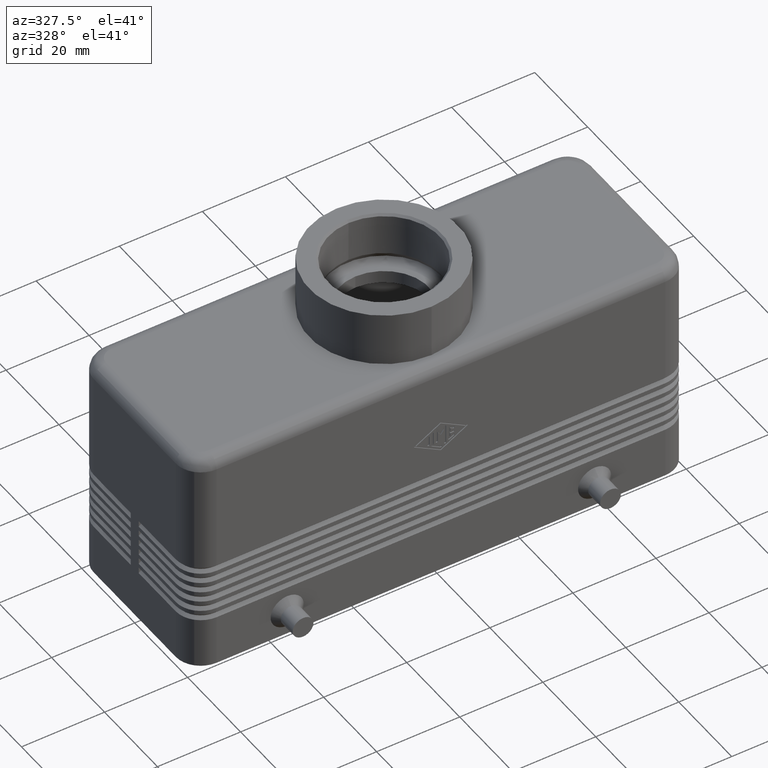
[diagram: clean part render]
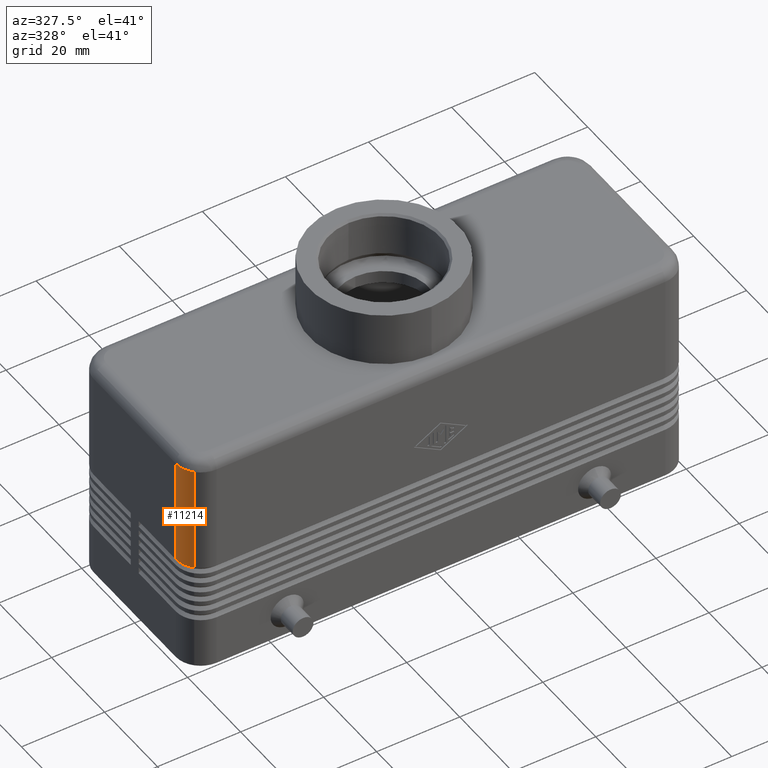
[diagram: same view with one face highlighted and labeled with its STEP entity id]
A machine part, auxiliary view. The second image highlights one B-rep face of the part: STEP entity #11214.
In plain terms, the highlighted cylindrical surface (edge-blend (fillet) strip) has radius 6 mm, axis along (0, 0, 1).
Its self-contained STEP definition (entity closure, byte-faithful):
#1374=CARTESIAN_POINT('',(-58.242640687119277,-19.742640687119277,26.250000000000021));
#1375=VERTEX_POINT('',#1374);
#1376=CARTESIAN_POINT('',(-58.242640687119277,-19.742640687119277,52.000000000000014));
#1377=VERTEX_POINT('',#1376);
#1378=CARTESIAN_POINT('',(-58.242640687119277,-19.742640687119277,26.250000000000021));
#1379=DIRECTION('',(0.0,0.0,1.0));
#1380=VECTOR('',#1379,25.749999999999993);
#1381=LINE('',#1378,#1380);
#1382=EDGE_CURVE('',#1375,#1377,#1381,.T.);
#5876=CARTESIAN_POINT('',(-59.999999999999993,-15.499999999999998,52.000000000000021));
#5877=VERTEX_POINT('',#5876);
#5885=CARTESIAN_POINT('',(-53.999999999999986,-15.499999999999998,52.000000000000021));
#5886=DIRECTION('',(0.0,0.0,1.000000000000000));
#5887=DIRECTION('',(-0.707106781186547,-0.707106781186547,0.0));
#5888=AXIS2_PLACEMENT_3D('',#5885,#5886,#5887);
#5889=CIRCLE('',#5888,6.0);
#5890=EDGE_CURVE('',#5877,#1377,#5889,.T.);
#9289=CARTESIAN_POINT('',(-59.999999999999993,-15.499999999999998,26.250000000000021));
#9290=VERTEX_POINT('',#9289);
#9297=CARTESIAN_POINT('',(-59.999999999999993,-15.499999999999998,52.000000000000021));
#9298=DIRECTION('',(0.0,0.0,-1.0));
#9299=VECTOR('',#9298,25.750000000000000);
#9300=LINE('',#9297,#9299);
#9301=EDGE_CURVE('',#5877,#9290,#9300,.T.);
#11112=CARTESIAN_POINT('',(-53.999999999999986,-15.499999999999998,26.250000000000021));
#11113=DIRECTION('',(0.0,0.0,-1.0));
#11114=DIRECTION('',(-0.707106781186548,-0.707106781186547,0.0));
#11115=AXIS2_PLACEMENT_3D('',#11112,#11113,#11114);
#11116=CIRCLE('',#11115,6.0);
#11117=EDGE_CURVE('',#1375,#9290,#11116,.T.);
#11203=CARTESIAN_POINT('',(-53.999999999999986,-15.499999999999998,41.250000000000000));
#11204=DIRECTION('',(1.614870E-016,0.0,1.0));
#11205=DIRECTION('',(-0.707106781186548,-0.707106781186547,0.0));
#11206=AXIS2_PLACEMENT_3D('',#11203,#11204,#11205);
#11207=CYLINDRICAL_SURFACE('',#11206,6.000000000000001);
#11208=ORIENTED_EDGE('',*,*,#1382,.T.);
#11209=ORIENTED_EDGE('',*,*,#5890,.F.);
#11210=ORIENTED_EDGE('',*,*,#9301,.T.);
#11211=ORIENTED_EDGE('',*,*,#11117,.F.);
#11212=EDGE_LOOP('',(#11208,#11209,#11210,#11211));
#11213=FACE_OUTER_BOUND('',#11212,.T.);
#11214=ADVANCED_FACE('',(#11213),#11207,.T.);